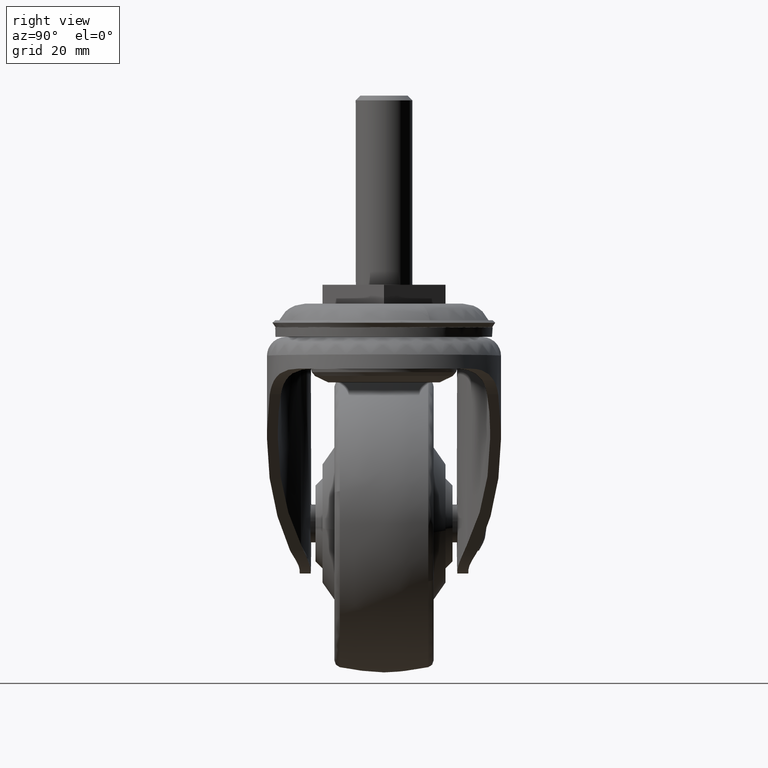
[diagram: clean part render]
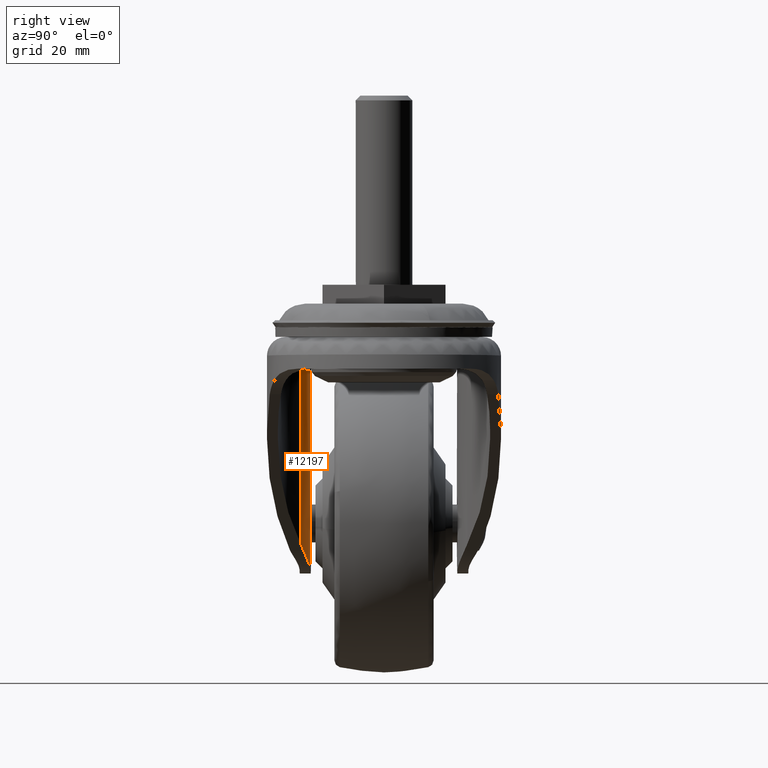
[diagram: same view with one face highlighted and labeled with its STEP entity id]
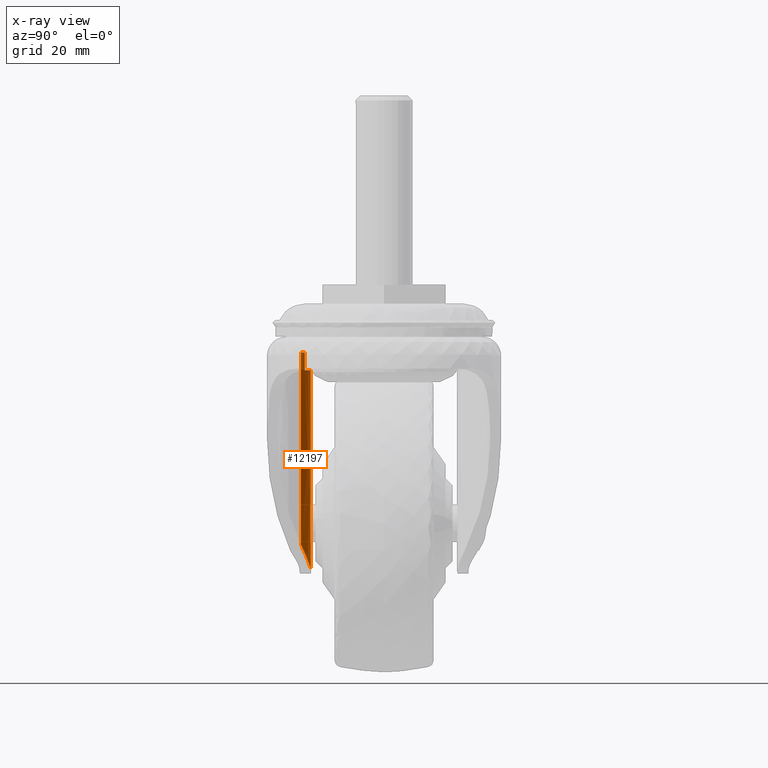
[diagram: x-ray of the same camera — body ghosted, the highlighted face saturated]
A machine part, right view. The second image highlights one B-rep face of the part: STEP entity #12197.
The next image is the same camera in x-ray: the body ghosted, the highlighted face saturated — about 4% of this face is hidden behind the body in this view.
In plain terms, the highlighted face is a freeform B-spline surface patch.
Its self-contained STEP definition (entity closure, byte-faithful):
#7664=CARTESIAN_POINT('',(-15.192351012922099,-16.752037221896749,-12.338144000000019));
#7665=VERTEX_POINT('',#7664);
#7837=CARTESIAN_POINT('',(-13.967747949607441,-17.575679708513050,-12.338144000000000));
#7838=VERTEX_POINT('',#7837);
#7852=CARTESIAN_POINT('',(-15.192351012922121,-16.752037221896771,-12.338144000000000));
#7853=CARTESIAN_POINT('',(-14.547270149928524,-17.115121701111175,-12.338143999999996));
#7854=CARTESIAN_POINT('',(-13.967747949607460,-17.575679708513061,-12.338144000000000));
#7862=(BOUNDED_CURVE()B_SPLINE_CURVE(2,(#7852,#7853,#7854),.UNSPECIFIED.,.F.,.U.)CURVE()GEOMETRIC_REPRESENTATION_ITEM()QUASI_UNIFORM_CURVE()RATIONAL_B_SPLINE_CURVE((1.0,0.996847209966116,1.0))REPRESENTATION_ITEM(''));
#7863=EDGE_CURVE('',#7665,#7838,#7862,.T.);
#11000=CARTESIAN_POINT('',(-19.655001282941150,-15.556999849109500,-16.157309212873400));
#11001=VERTEX_POINT('',#11000);
#11032=CARTESIAN_POINT('',(-15.192351012922099,-16.752037221896749,-16.157309212873852));
#11033=VERTEX_POINT('',#11032);
#11067=CARTESIAN_POINT('',(-19.655001282941150,-15.556999849109500,-16.157309212873400));
#11068=CARTESIAN_POINT('',(-17.270462477618121,-15.582369879097136,-16.157309212873852));
#11069=CARTESIAN_POINT('',(-15.192351012922121,-16.752037221896771,-16.157309212873852));
#11077=(BOUNDED_CURVE()B_SPLINE_CURVE(2,(#11067,#11068,#11069),.UNSPECIFIED.,.F.,.U.)CURVE()GEOMETRIC_REPRESENTATION_ITEM()QUASI_UNIFORM_CURVE()RATIONAL_B_SPLINE_CURVE((1.0,0.968662403116550,1.0))REPRESENTATION_ITEM(''));
#11078=EDGE_CURVE('',#11001,#11033,#11077,.T.);
#11345=CARTESIAN_POINT('',(-19.655001282941150,-15.556999849109500,-58.247723492867287));
#11346=VERTEX_POINT('',#11345);
#11362=CARTESIAN_POINT('',(-14.745581793341140,-17.020254526828200,-54.198721778351498));
#11363=VERTEX_POINT('',#11362);
#11364=CARTESIAN_POINT('',(-14.745581793341140,-17.020254526828200,-54.198721778351498));
#11365=CARTESIAN_POINT('',(-15.037392047608680,-16.833749930886590,-54.636727230091637));
#11366=CARTESIAN_POINT('',(-15.357874307291871,-16.651833768613869,-55.050205856014223));
#11367=CARTESIAN_POINT('',(-16.058877591787368,-16.313170669804482,-55.832385625212197));
#11368=CARTESIAN_POINT('',(-16.439342323523839,-16.156248580658531,-56.201064655087137));
#11369=CARTESIAN_POINT('',(-16.957699100016779,-15.986133565487901,-56.633438794237932));
#11370=CARTESIAN_POINT('',(-17.063773413549960,-15.953352742435630,-56.718665797196550));
#11371=CARTESIAN_POINT('',(-17.279158212083750,-15.891095011779210,-56.885202756054127));
#11372=CARTESIAN_POINT('',(-17.388317737094031,-15.861651311243611,-56.966412682603483));
#11373=CARTESIAN_POINT('',(-17.720224136357331,-15.778697871081130,-57.203904934427051));
#11374=CARTESIAN_POINT('',(-17.947391335624239,-15.730556083025990,-57.354059971531647));
#11375=CARTESIAN_POINT('',(-18.647053417346068,-15.610459491885869,-57.779938335782127));
#11376=CARTESIAN_POINT('',(-19.137546743923998,-15.562505247949270,-58.031265638011753));
#11377=CARTESIAN_POINT('',(-19.655001282941150,-15.556999849109550,-58.247723492867401));
#11378=B_SPLINE_CURVE_WITH_KNOTS('',3,(#11364,#11365,#11366,#11367,#11368,#11369,#11370,#11371,#11372,#11373,#11374,#11375,#11376,#11377),.UNSPECIFIED.,.F.,.U.,(4,2,2,2,2,2,4),(0.0,0.249999999999998,0.499999999999995,0.562499999999996,0.624999999999998,0.749999999999999,1.0),.UNSPECIFIED.);
#11379=EDGE_CURVE('',#11363,#11346,#11378,.T.);
#11663=CARTESIAN_POINT('',(-13.967747949607441,-17.575679708513050,-52.952403246905199));
#11664=VERTEX_POINT('',#11663);
#11665=CARTESIAN_POINT('',(-14.745581793341181,-17.020254526828200,-54.198721778351377));
#11666=CARTESIAN_POINT('',(-14.342375391502468,-17.277955707496979,-53.552666564043463));
#11667=CARTESIAN_POINT('',(-13.967747949607469,-17.575679708513050,-52.952403246905178));
#11675=(BOUNDED_CURVE()B_SPLINE_CURVE(2,(#11665,#11666,#11667),.UNSPECIFIED.,.F.,.U.)CURVE()GEOMETRIC_REPRESENTATION_ITEM()QUASI_UNIFORM_CURVE()RATIONAL_B_SPLINE_CURVE((1.0,0.998678855261277,1.0))REPRESENTATION_ITEM(''));
#11676=EDGE_CURVE('',#11363,#11664,#11675,.T.);
#12162=CARTESIAN_POINT('',(-19.898467029277519,-15.557596581027370,-59.395462980188981));
#12163=CARTESIAN_POINT('',(-19.898467029277519,-15.557596581027370,-11.161711025495279));
#12164=CARTESIAN_POINT('',(-16.401351458185225,-15.503243694010861,-59.395462980188974));
#12165=CARTESIAN_POINT('',(-16.401351458185225,-15.503243694010861,-11.161711025495283));
#12166=CARTESIAN_POINT('',(-13.735077106273634,-17.766814464771453,-59.395462980188981));
#12167=CARTESIAN_POINT('',(-13.735077106273634,-17.766814464771453,-11.161711025495283));
#12175=(BOUNDED_SURFACE()B_SPLINE_SURFACE(1,2,((#12162,#12164,#12166),(#12163,#12165,#12167)),.UNSPECIFIED.,.F.,.F.,.U.)B_SPLINE_SURFACE_WITH_KNOTS((2,2),(3,3),(0.0,48.233751954693702),(0.0,6.763818376855210),.UNSPECIFIED.)GEOMETRIC_REPRESENTATION_ITEM()RATIONAL_B_SPLINE_SURFACE(((1.0,0.934839633081535,0.997529331829936),(1.0,0.934839633081535,0.997529331829936)))REPRESENTATION_ITEM('')SURFACE());
#12176=CARTESIAN_POINT('',(-15.192351012922099,-16.752037221896749,-16.157309212873852));
#12177=CARTESIAN_POINT('',(-15.192351012922099,-16.752037221896749,-12.338144000000019));
#12178=QUASI_UNIFORM_CURVE('',1,(#12176,#12177),.UNSPECIFIED.,.F.,.U.);
#12179=EDGE_CURVE('',#11033,#7665,#12178,.T.);
#12180=ORIENTED_EDGE('',*,*,#12179,.T.);
#12181=ORIENTED_EDGE('',*,*,#7863,.T.);
#12182=CARTESIAN_POINT('',(-13.967747949607441,-17.575679708513050,-12.338144000000000));
#12183=CARTESIAN_POINT('',(-13.967747949607441,-17.575679708513050,-52.952403246905199));
#12184=QUASI_UNIFORM_CURVE('',1,(#12182,#12183),.UNSPECIFIED.,.F.,.U.);
#12185=EDGE_CURVE('',#7838,#11664,#12184,.T.);
#12186=ORIENTED_EDGE('',*,*,#12185,.T.);
#12187=ORIENTED_EDGE('',*,*,#11676,.F.);
#12188=ORIENTED_EDGE('',*,*,#11379,.T.);
#12189=CARTESIAN_POINT('',(-19.655001282941150,-15.556999849109500,-58.247723492867287));
#12190=CARTESIAN_POINT('',(-19.655001282941150,-15.556999849109500,-16.157309212873400));
#12191=QUASI_UNIFORM_CURVE('',1,(#12189,#12190),.UNSPECIFIED.,.F.,.U.);
#12192=EDGE_CURVE('',#11346,#11001,#12191,.T.);
#12193=ORIENTED_EDGE('',*,*,#12192,.T.);
#12194=ORIENTED_EDGE('',*,*,#11078,.T.);
#12195=EDGE_LOOP('',(#12180,#12181,#12186,#12187,#12188,#12193,#12194));
#12196=FACE_OUTER_BOUND('',#12195,.T.);
#12197=ADVANCED_FACE('',(#12196),#12175,.T.);